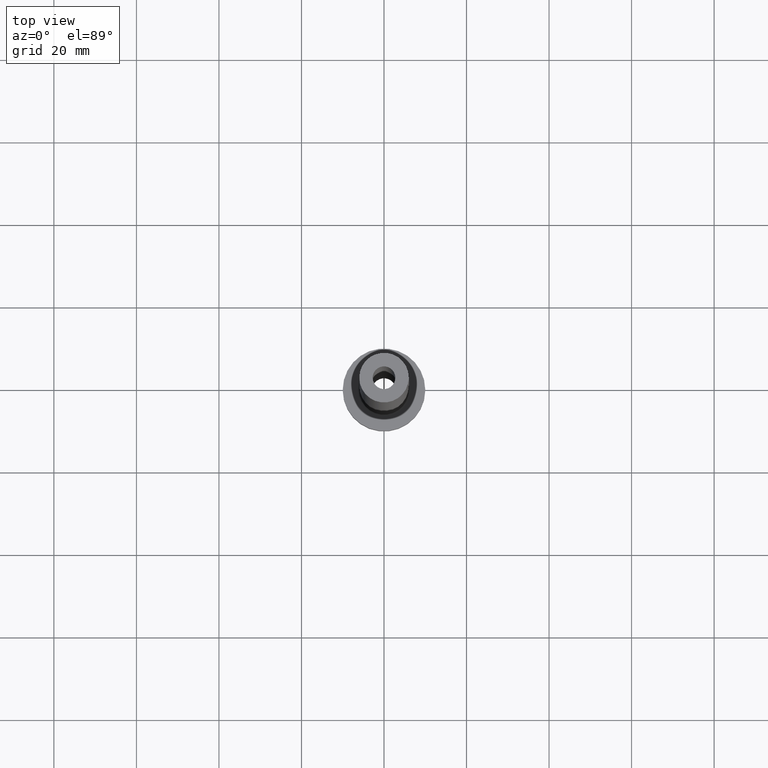
[diagram: clean part render]
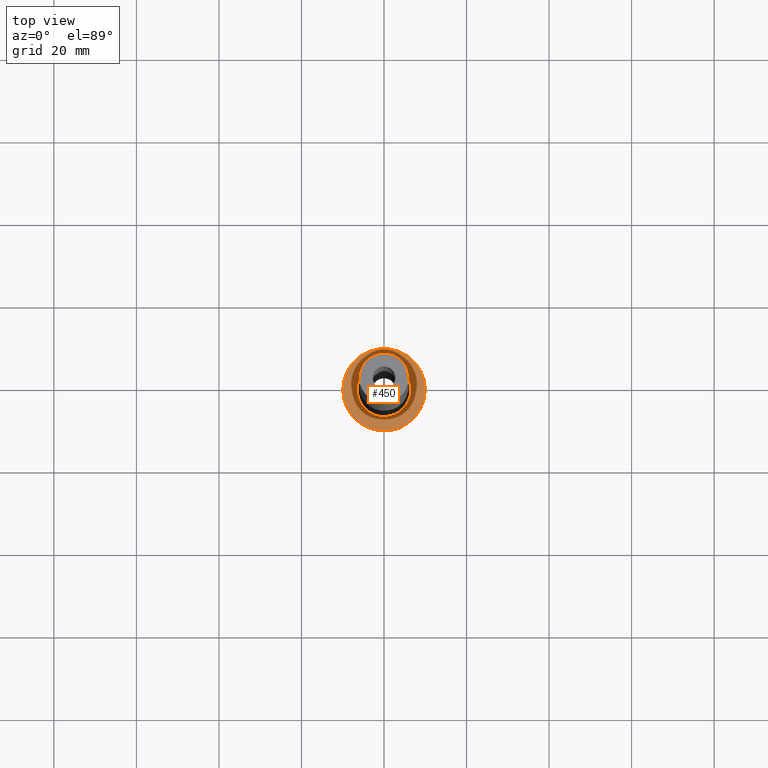
[diagram: same view with one face highlighted and labeled with its STEP entity id]
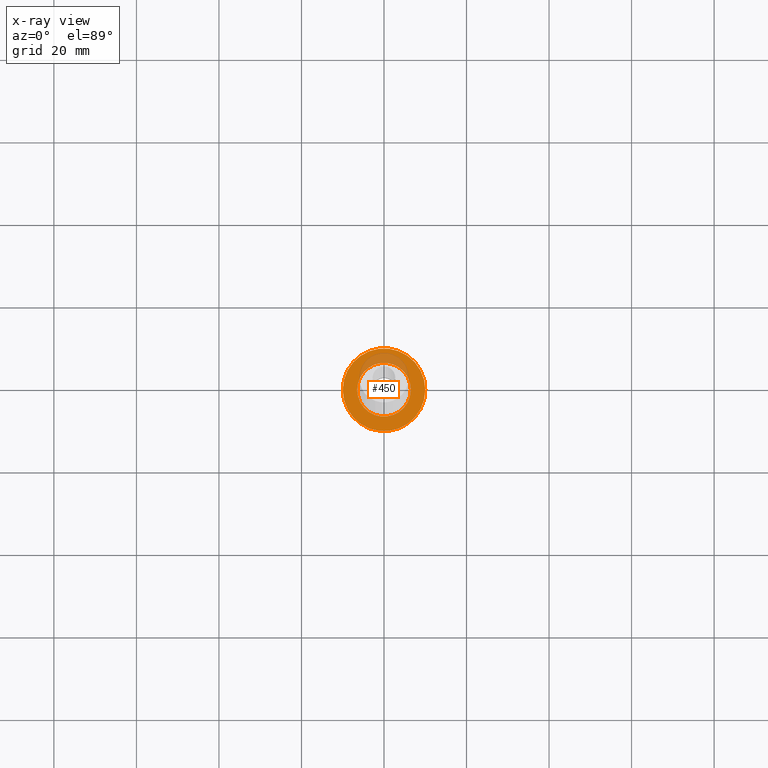
[diagram: x-ray of the same camera — body ghosted, the highlighted face saturated]
A machine part, top view. The second image highlights one B-rep face of the part: STEP entity #450.
The next image is the same camera in x-ray: the body ghosted, the highlighted face saturated — about 15% of this face is hidden behind the body in this view.
In plain terms, the highlighted planar face has unit normal (0, 0, 1).
Its self-contained STEP definition (entity closure, byte-faithful):
#1 = DIRECTION ( 'NONE',  ( 0.000000000000000000, 0.000000000000000000, 1.000000000000000000 ) ) ;
#17 = CARTESIAN_POINT ( 'NONE',  ( 10.00000000000000000, 1.224646799147353256E-15, 7.000000000000000000 ) ) ;
#35 = CARTESIAN_POINT ( 'NONE',  ( 6.500000000000000888, 0.000000000000000000, 7.000000000000002665 ) ) ;
#54 = EDGE_LOOP ( 'NONE', ( #415, #201 ) ) ;
#62 = CIRCLE ( 'NONE', #285, 6.500000000000000888 ) ;
#102 = CIRCLE ( 'NONE', #451, 10.00000000000000000 ) ;
#104 = FACE_BOUND ( 'NONE', #54, .T. ) ;
#105 = FACE_OUTER_BOUND ( 'NONE', #347, .T. ) ;
#135 = DIRECTION ( 'NONE',  ( -0.000000000000000000, -0.000000000000000000, -1.000000000000000000 ) ) ;
#140 = VERTEX_POINT ( 'NONE', #17 ) ;
#149 = DIRECTION ( 'NONE',  ( 1.000000000000000000, 0.000000000000000000, 0.000000000000000000 ) ) ;
#161 = CARTESIAN_POINT ( 'NONE',  ( -10.00000000000000000, 0.000000000000000000, 7.000000000000000000 ) ) ;
#183 = DIRECTION ( 'NONE',  ( 1.000000000000000000, 0.000000000000000000, 0.000000000000000000 ) ) ;
#196 = CIRCLE ( 'NONE', #209, 10.00000000000000000 ) ;
#201 = ORIENTED_EDGE ( 'NONE', *, *, #333, .T. ) ;
#209 = AXIS2_PLACEMENT_3D ( 'NONE', #253, #1, #183 ) ;
#218 = DIRECTION ( 'NONE',  ( 0.000000000000000000, 0.000000000000000000, 1.000000000000000000 ) ) ;
#227 = DIRECTION ( 'NONE',  ( 1.000000000000000000, 0.000000000000000000, 0.000000000000000000 ) ) ;
#253 = CARTESIAN_POINT ( 'NONE',  ( 0.000000000000000000, 0.000000000000000000, 7.000000000000000000 ) ) ;
#266 = ORIENTED_EDGE ( 'NONE', *, *, #331, .T. ) ;
#272 = CARTESIAN_POINT ( 'NONE',  ( 0.000000000000000000, 0.000000000000000000, 7.000000000000000000 ) ) ;
#276 = DIRECTION ( 'NONE',  ( 0.000000000000000000, 0.000000000000000000, 1.000000000000000000 ) ) ;
#285 = AXIS2_PLACEMENT_3D ( 'NONE', #458, #360, #149 ) ;
#286 = DIRECTION ( 'NONE',  ( 1.000000000000000000, 0.000000000000000000, -0.000000000000000000 ) ) ;
#300 = CARTESIAN_POINT ( 'NONE',  ( 0.000000000000000000, 0.000000000000000000, 7.000000000000000000 ) ) ;
#304 = VERTEX_POINT ( 'NONE', #362 ) ;
#312 = PLANE ( 'NONE',  #417 ) ;
#322 = VERTEX_POINT ( 'NONE', #35 ) ;
#331 = EDGE_CURVE ( 'NONE', #140, #372, #196, .T. ) ;
#333 = EDGE_CURVE ( 'NONE', #304, #322, #62, .T. ) ;
#338 = AXIS2_PLACEMENT_3D ( 'NONE', #300, #135, #441 ) ;
#347 = EDGE_LOOP ( 'NONE', ( #408, #266 ) ) ;
#359 = CARTESIAN_POINT ( 'NONE',  ( 0.000000000000000000, 0.000000000000000000, 7.000000000000000000 ) ) ;
#360 = DIRECTION ( 'NONE',  ( -0.000000000000000000, -0.000000000000000000, -1.000000000000000000 ) ) ;
#362 = CARTESIAN_POINT ( 'NONE',  ( -6.500000000000000888, 7.960204194457796463E-16, 7.000000000000002665 ) ) ;
#372 = VERTEX_POINT ( 'NONE', #161 ) ;
#404 = EDGE_CURVE ( 'NONE', #372, #140, #102, .T. ) ;
#408 = ORIENTED_EDGE ( 'NONE', *, *, #404, .T. ) ;
#414 = EDGE_CURVE ( 'NONE', #322, #304, #459, .T. ) ;
#415 = ORIENTED_EDGE ( 'NONE', *, *, #414, .T. ) ;
#417 = AXIS2_PLACEMENT_3D ( 'NONE', #359, #218, #286 ) ;
#441 = DIRECTION ( 'NONE',  ( 1.000000000000000000, 0.000000000000000000, 0.000000000000000000 ) ) ;
#450 = ADVANCED_FACE ( 'NONE', ( #104, #105 ), #312, .T. ) ;
#451 = AXIS2_PLACEMENT_3D ( 'NONE', #272, #276, #227 ) ;
#458 = CARTESIAN_POINT ( 'NONE',  ( 0.000000000000000000, 0.000000000000000000, 7.000000000000000000 ) ) ;
#459 = CIRCLE ( 'NONE', #338, 6.500000000000000888 ) ;